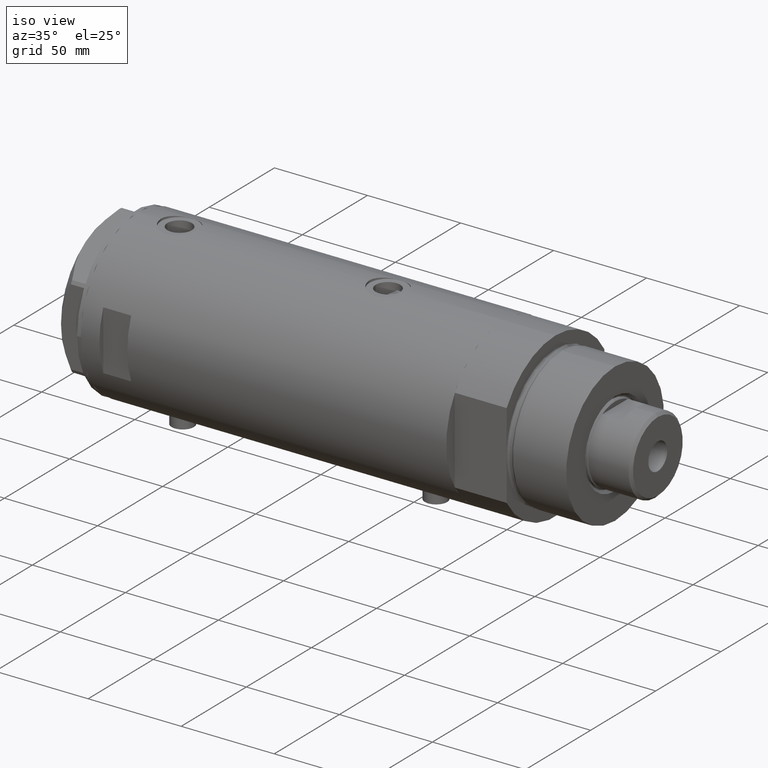
[diagram: clean part render]
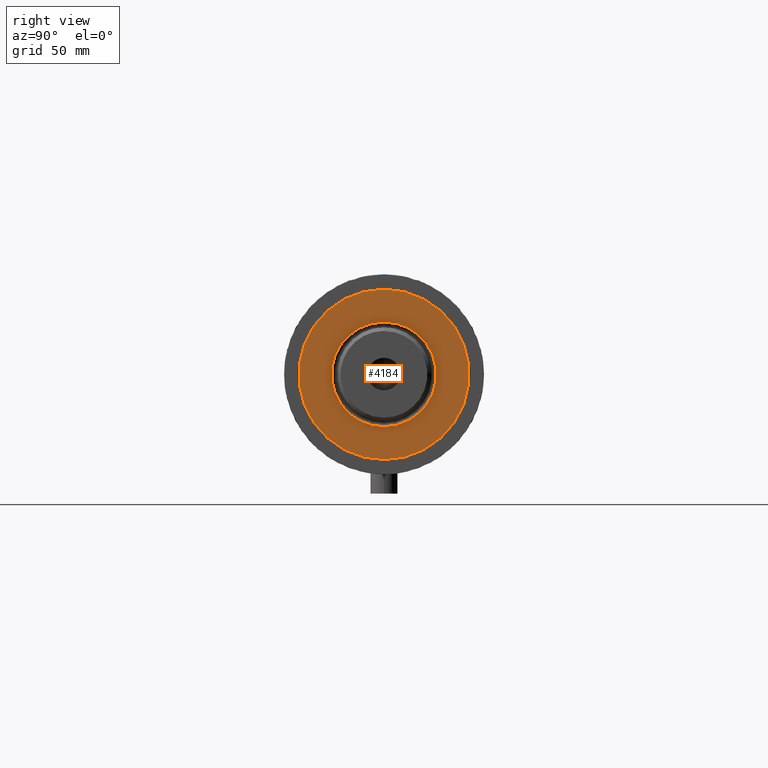
[diagram: tour spotlight — one face highlighted and labeled with its STEP entity id]
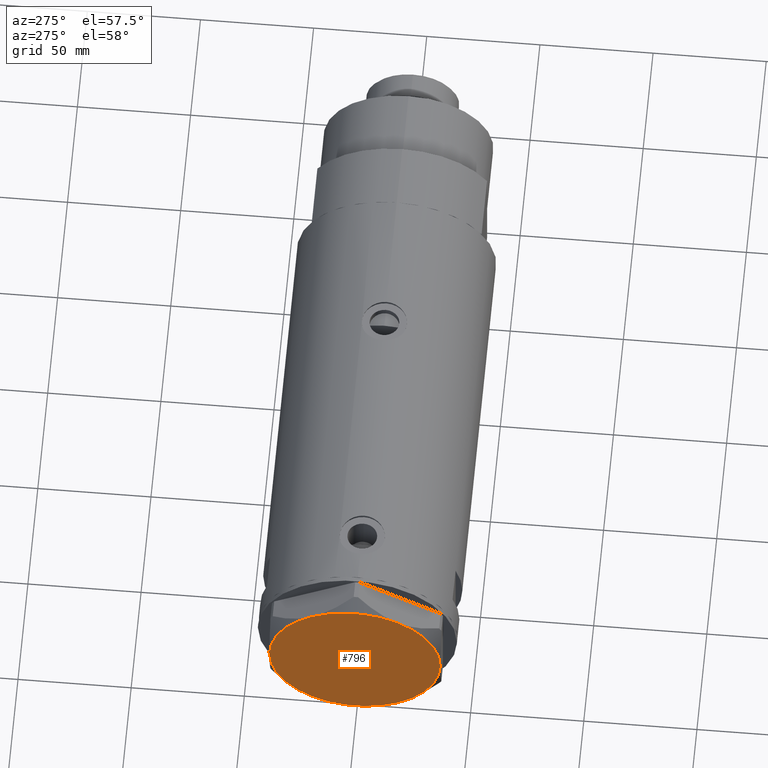
[diagram: tour spotlight — one face highlighted and labeled with its STEP entity id]
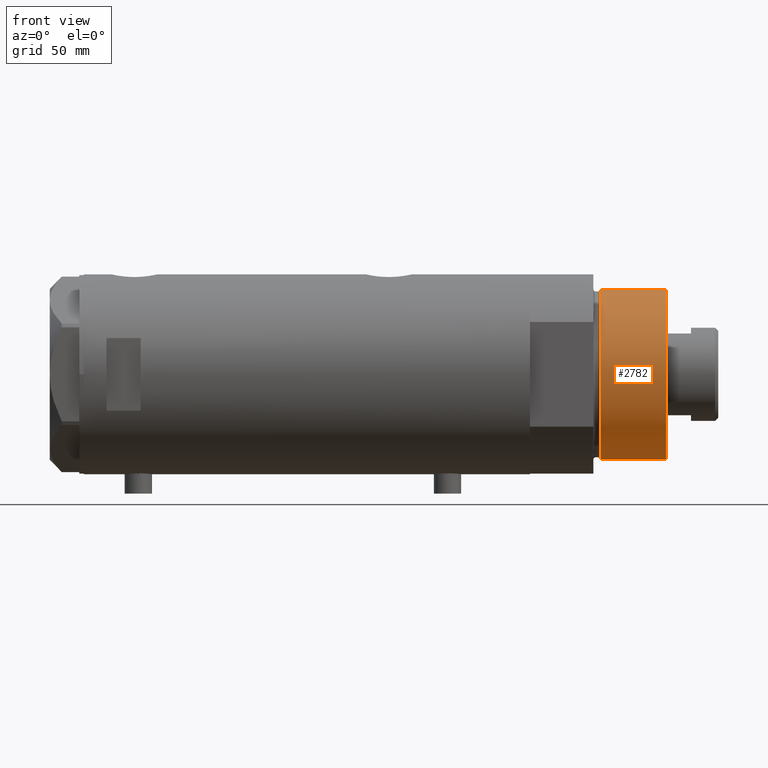
[diagram: tour spotlight — one face highlighted and labeled with its STEP entity id]
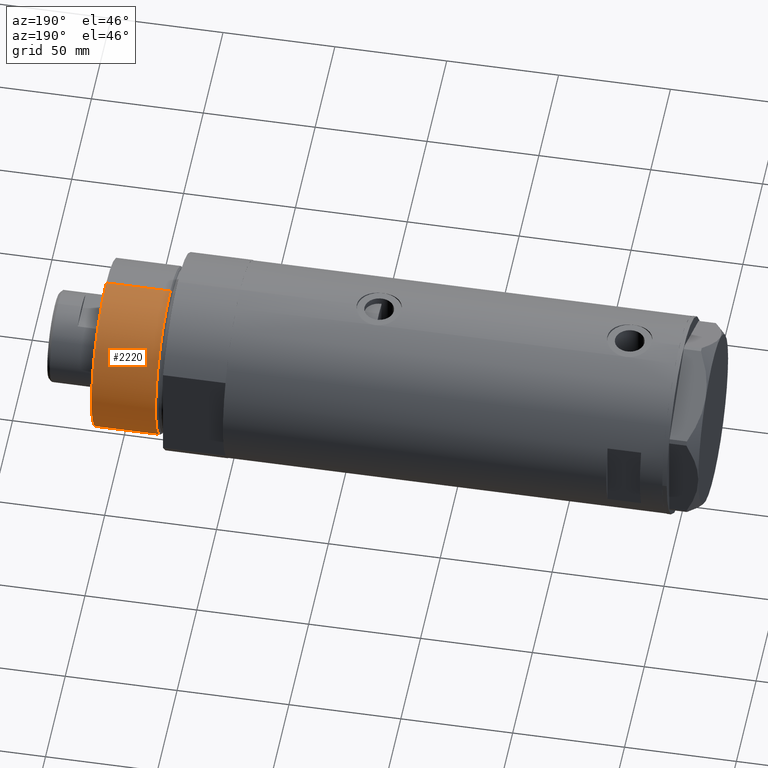
[diagram: tour spotlight — one face highlighted and labeled with its STEP entity id]
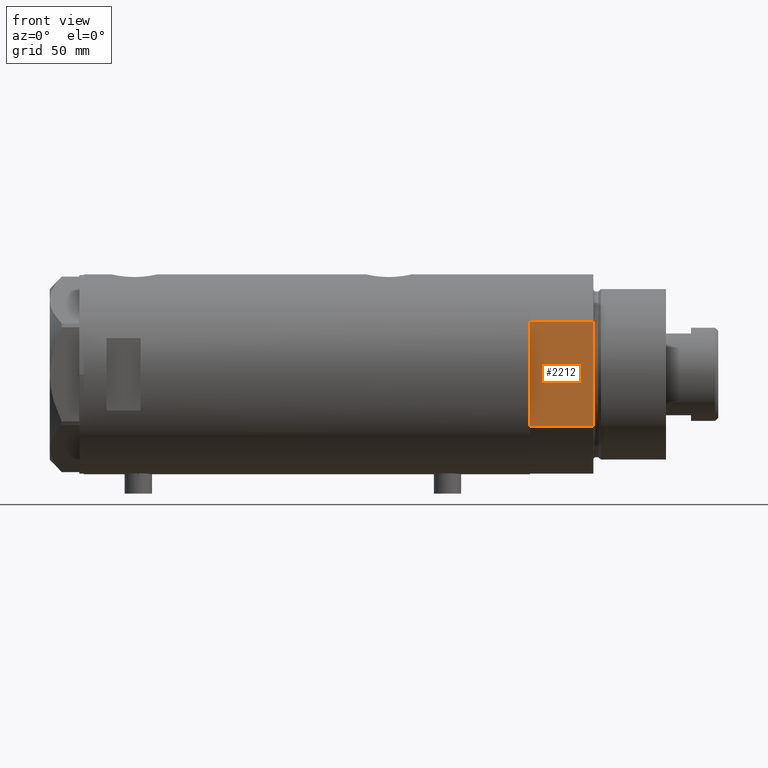
[diagram: tour spotlight — one face highlighted and labeled with its STEP entity id]
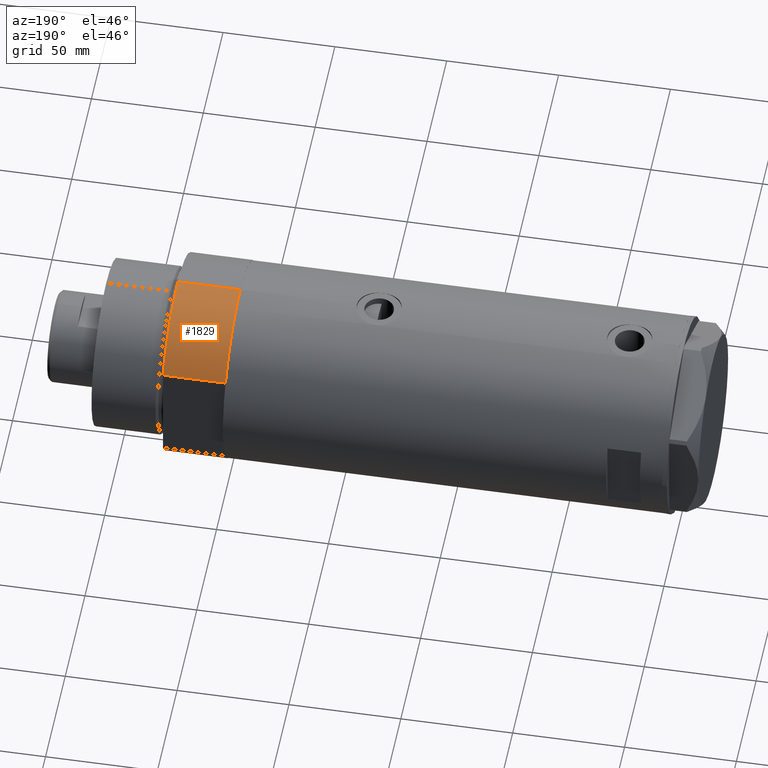
[diagram: tour spotlight — one face highlighted and labeled with its STEP entity id]
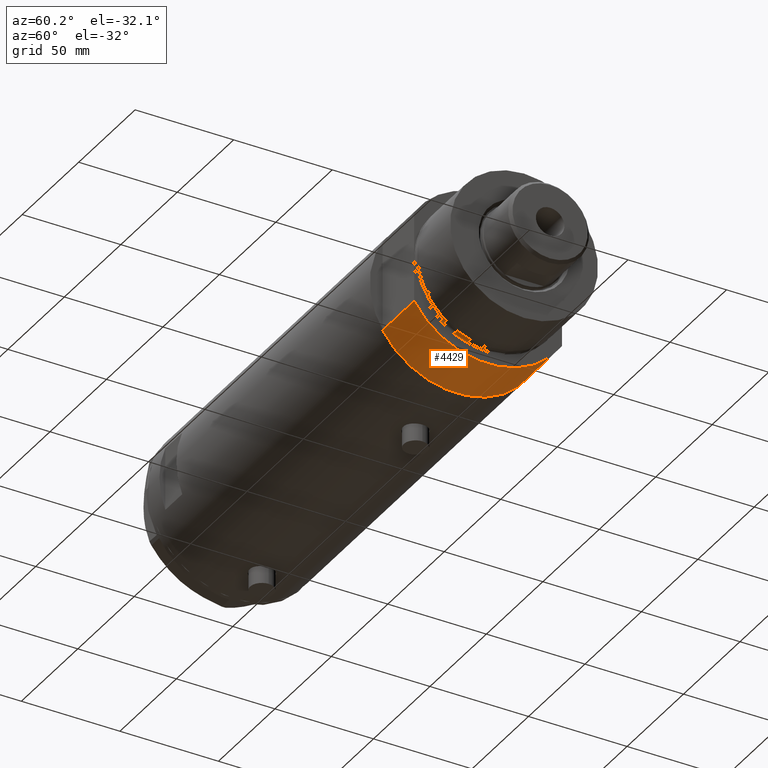
[diagram: tour spotlight — one face highlighted and labeled with its STEP entity id]
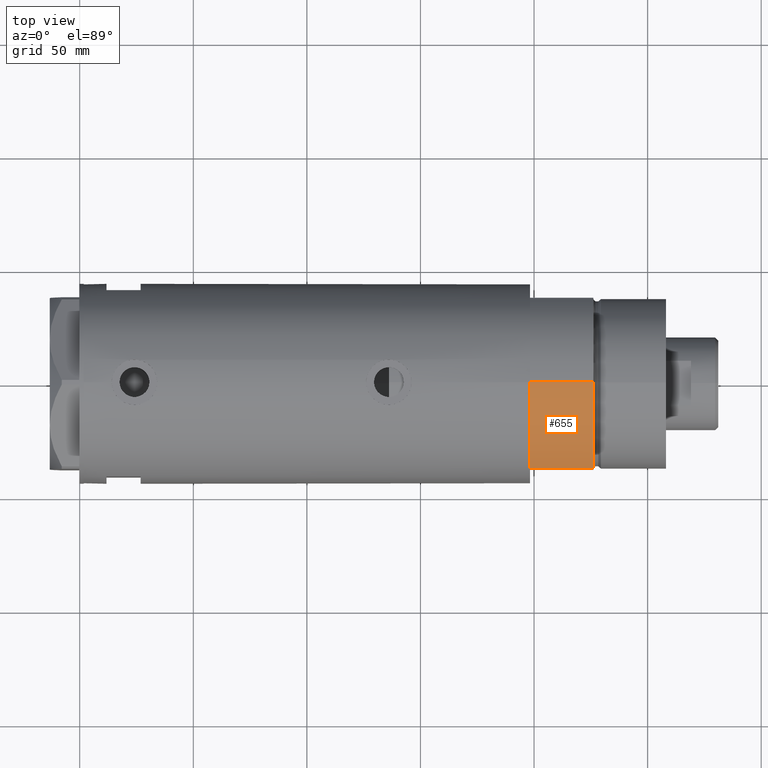
[diagram: tour spotlight — one face highlighted and labeled with its STEP entity id]
A machine part: a face-by-face anatomy tour. The part has 121 B-rep faces; the first image is the clean iso view, then the 8 largest visible faces are spotlighted one at a time (largest first), each with its STEP entity span.

Face 1 — right view, entity #4184. In plain terms, the highlighted planar face has unit normal (1, 0, -0).
Definition (entity closure, byte-faithful):
#47 = FACE_OUTER_BOUND ( 'NONE', #1843, .T. ) ;
#205 = DIRECTION ( 'NONE',  ( 1.000000000000000000, 0.000000000000000000, 0.000000000000000000 ) ) ;
#224 = VERTEX_POINT ( 'NONE', #3590 ) ;
#432 = AXIS2_PLACEMENT_3D ( 'NONE', #3646, #1155, #2163 ) ;
#442 = CARTESIAN_POINT ( 'NONE',  ( 23.05000000000002913, 0.000000000000000000, 59.89999999999999147 ) ) ;
#467 = DIRECTION ( 'NONE',  ( 0.000000000000000000, 0.000000000000000000, 1.000000000000000000 ) ) ;
#571 = DIRECTION ( 'NONE',  ( -0.000000000000000000, -0.000000000000000000, -1.000000000000000000 ) ) ;
#617 = CARTESIAN_POINT ( 'NONE',  ( 37.50000000000000711, 4.592425496802575156E-15, 59.89999999999999147 ) ) ;
#681 = DIRECTION ( 'NONE',  ( 0.000000000000000000, 0.000000000000000000, 1.000000000000000000 ) ) ;
#784 = AXIS2_PLACEMENT_3D ( 'NONE', #3971, #1967, #205 ) ;
#801 = VERTEX_POINT ( 'NONE', #442 ) ;
#964 = EDGE_CURVE ( 'NONE', #801, #224, #2338, .T. ) ;
#1007 = CIRCLE ( 'NONE', #784, 23.05000000000002913 ) ;
#1141 = ORIENTED_EDGE ( 'NONE', *, *, #964, .T. ) ;
#1155 = DIRECTION ( 'NONE',  ( 0.000000000000000000, 0.000000000000000000, 1.000000000000000000 ) ) ;
#1342 = EDGE_CURVE ( 'NONE', #224, #801, #1007, .T. ) ;
#1354 = CARTESIAN_POINT ( 'NONE',  ( 0.000000000000000000, 0.000000000000000000, 59.89999999999999147 ) ) ;
#1675 = CIRCLE ( 'NONE', #1740, 37.50000000000000711 ) ;
#1740 = AXIS2_PLACEMENT_3D ( 'NONE', #1354, #681, #2087 ) ;
#1843 = EDGE_LOOP ( 'NONE', ( #3481, #3930 ) ) ;
#1891 = CIRCLE ( 'NONE', #3084, 37.50000000000000711 ) ;
#1967 = DIRECTION ( 'NONE',  ( -0.000000000000000000, -0.000000000000000000, -1.000000000000000000 ) ) ;
#1990 = DIRECTION ( 'NONE',  ( 1.000000000000000000, 0.000000000000000000, 0.000000000000000000 ) ) ;
#2011 = CARTESIAN_POINT ( 'NONE',  ( 0.000000000000000000, 0.000000000000000000, 59.89999999999999147 ) ) ;
#2087 = DIRECTION ( 'NONE',  ( 1.000000000000000000, 0.000000000000000000, 0.000000000000000000 ) ) ;
#2163 = DIRECTION ( 'NONE',  ( 1.000000000000000000, 0.000000000000000000, -0.000000000000000000 ) ) ;
#2292 = EDGE_CURVE ( 'NONE', #2482, #3853, #1675, .T. ) ;
#2338 = CIRCLE ( 'NONE', #3506, 23.05000000000002913 ) ;
#2379 = CARTESIAN_POINT ( 'NONE',  ( -37.50000000000000711, 0.000000000000000000, 59.89999999999999147 ) ) ;
#2482 = VERTEX_POINT ( 'NONE', #617 ) ;
#2545 = CARTESIAN_POINT ( 'NONE',  ( 0.000000000000000000, 0.000000000000000000, 59.89999999999999147 ) ) ;
#2702 = EDGE_CURVE ( 'NONE', #3853, #2482, #1891, .T. ) ;
#2955 = ORIENTED_EDGE ( 'NONE', *, *, #1342, .T. ) ;
#3084 = AXIS2_PLACEMENT_3D ( 'NONE', #2545, #467, #4279 ) ;
#3396 = EDGE_LOOP ( 'NONE', ( #1141, #2955 ) ) ;
#3481 = ORIENTED_EDGE ( 'NONE', *, *, #2702, .T. ) ;
#3506 = AXIS2_PLACEMENT_3D ( 'NONE', #2011, #571, #1990 ) ;
#3590 = CARTESIAN_POINT ( 'NONE',  ( -23.05000000000002913, 2.822810872034651791E-15, 59.89999999999999147 ) ) ;
#3646 = CARTESIAN_POINT ( 'NONE',  ( 0.000000000000000000, 0.000000000000000000, 59.89999999999999147 ) ) ;
#3853 = VERTEX_POINT ( 'NONE', #2379 ) ;
#3930 = ORIENTED_EDGE ( 'NONE', *, *, #2292, .T. ) ;
#3971 = CARTESIAN_POINT ( 'NONE',  ( 0.000000000000000000, 0.000000000000000000, 59.89999999999999147 ) ) ;
#3994 = PLANE ( 'NONE',  #432 ) ;
#4184 = ADVANCED_FACE ( 'NONE', ( #4275, #47 ), #3994, .T. ) ;
#4275 = FACE_BOUND ( 'NONE', #3396, .T. ) ;
#4279 = DIRECTION ( 'NONE',  ( 1.000000000000000000, 0.000000000000000000, 0.000000000000000000 ) ) ;

Face 2 — auxiliary view, entity #796. In plain terms, the highlighted planar face has unit normal (-1, -0, 0).
Definition (entity closure, byte-faithful):
#1 = ORIENTED_EDGE ( 'NONE', *, *, #3085, .T. ) ;
#119 = AXIS2_PLACEMENT_3D ( 'NONE', #3650, #2308, #3692 ) ;
#170 = DIRECTION ( 'NONE',  ( 1.000000000000000000, 0.000000000000000000, -0.000000000000000000 ) ) ;
#247 = CARTESIAN_POINT ( 'NONE',  ( -18.87499999999999645, -32.69245899286255508, 13.00000000000000000 ) ) ;
#381 = VERTEX_POINT ( 'NONE', #3255 ) ;
#462 = ORIENTED_EDGE ( 'NONE', *, *, #2385, .T. ) ;
#475 = CARTESIAN_POINT ( 'NONE',  ( -37.75000000000000000, -1.201851678989727067E-14, 13.00000000000000000 ) ) ;
#484 = AXIS2_PLACEMENT_3D ( 'NONE', #4493, #2157, #3872 ) ;
#518 = VERTEX_POINT ( 'NONE', #247 ) ;
#520 = DIRECTION ( 'NONE',  ( 0.000000000000000000, 0.000000000000000000, 1.000000000000000000 ) ) ;
#679 = EDGE_CURVE ( 'NONE', #814, #381, #2259, .T. ) ;
#720 = DIRECTION ( 'NONE',  ( 1.000000000000000000, 0.000000000000000000, 0.000000000000000000 ) ) ;
#756 = ORIENTED_EDGE ( 'NONE', *, *, #679, .T. ) ;
#796 = ADVANCED_FACE ( 'NONE', ( #851 ), #1909, .T. ) ;
#814 = VERTEX_POINT ( 'NONE', #1845 ) ;
#851 = FACE_OUTER_BOUND ( 'NONE', #2105, .T. ) ;
#1016 = AXIS2_PLACEMENT_3D ( 'NONE', #2862, #1471, #4273 ) ;
#1049 = DIRECTION ( 'NONE',  ( 0.000000000000000000, 0.000000000000000000, 1.000000000000000000 ) ) ;
#1099 = CIRCLE ( 'NONE', #1016, 37.75000000000000000 ) ;
#1175 = AXIS2_PLACEMENT_3D ( 'NONE', #1706, #1049, #720 ) ;
#1233 = CARTESIAN_POINT ( 'NONE',  ( 0.000000000000000000, 0.000000000000000000, 13.00000000000000000 ) ) ;
#1256 = ORIENTED_EDGE ( 'NONE', *, *, #3200, .T. ) ;
#1263 = DIRECTION ( 'NONE',  ( 1.000000000000000000, 0.000000000000000000, 0.000000000000000000 ) ) ;
#1384 = CIRCLE ( 'NONE', #1175, 37.75000000000000000 ) ;
#1393 = CARTESIAN_POINT ( 'NONE',  ( 0.000000000000000000, 0.000000000000000000, 13.00000000000000000 ) ) ;
#1435 = DIRECTION ( 'NONE',  ( 0.000000000000000000, 0.000000000000000000, 1.000000000000000000 ) ) ;
#1471 = DIRECTION ( 'NONE',  ( 0.000000000000000000, 0.000000000000000000, 1.000000000000000000 ) ) ;
#1621 = EDGE_CURVE ( 'NONE', #3400, #518, #3228, .T. ) ;
#1706 = CARTESIAN_POINT ( 'NONE',  ( 0.000000000000000000, 0.000000000000000000, 13.00000000000000000 ) ) ;
#1845 = CARTESIAN_POINT ( 'NONE',  ( 18.87499999999998579, -32.69245899286256218, 13.00000000000000000 ) ) ;
#1909 = PLANE ( 'NONE',  #2560 ) ;
#1936 = VERTEX_POINT ( 'NONE', #3344 ) ;
#2010 = CARTESIAN_POINT ( 'NONE',  ( 18.87500000000000000, 32.69245899286255508, 13.00000000000000000 ) ) ;
#2082 = ORIENTED_EDGE ( 'NONE', *, *, #1621, .T. ) ;
#2105 = EDGE_LOOP ( 'NONE', ( #756, #1, #3402, #462, #2082, #1256 ) ) ;
#2157 = DIRECTION ( 'NONE',  ( 0.000000000000000000, 0.000000000000000000, 1.000000000000000000 ) ) ;
#2259 = CIRCLE ( 'NONE', #3293, 37.75000000000000000 ) ;
#2308 = DIRECTION ( 'NONE',  ( 0.000000000000000000, 0.000000000000000000, 1.000000000000000000 ) ) ;
#2385 = EDGE_CURVE ( 'NONE', #1936, #3400, #2653, .T. ) ;
#2560 = AXIS2_PLACEMENT_3D ( 'NONE', #1233, #520, #170 ) ;
#2653 = CIRCLE ( 'NONE', #4447, 37.75000000000000000 ) ;
#2862 = CARTESIAN_POINT ( 'NONE',  ( 0.000000000000000000, 0.000000000000000000, 13.00000000000000000 ) ) ;
#2899 = EDGE_CURVE ( 'NONE', #3485, #1936, #4231, .T. ) ;
#3085 = EDGE_CURVE ( 'NONE', #381, #3485, #1099, .T. ) ;
#3195 = DIRECTION ( 'NONE',  ( 1.000000000000000000, 0.000000000000000000, 0.000000000000000000 ) ) ;
#3200 = EDGE_CURVE ( 'NONE', #518, #814, #1384, .T. ) ;
#3228 = CIRCLE ( 'NONE', #484, 37.75000000000000000 ) ;
#3255 = CARTESIAN_POINT ( 'NONE',  ( 37.75000000000000711, 1.802777518484591547E-14, 13.00000000000000000 ) ) ;
#3293 = AXIS2_PLACEMENT_3D ( 'NONE', #1393, #1435, #3195 ) ;
#3344 = CARTESIAN_POINT ( 'NONE',  ( -18.87499999999999645, 32.69245899286256218, 13.00000000000000000 ) ) ;
#3400 = VERTEX_POINT ( 'NONE', #475 ) ;
#3402 = ORIENTED_EDGE ( 'NONE', *, *, #2899, .T. ) ;
#3438 = DIRECTION ( 'NONE',  ( 0.000000000000000000, 0.000000000000000000, 1.000000000000000000 ) ) ;
#3485 = VERTEX_POINT ( 'NONE', #2010 ) ;
#3650 = CARTESIAN_POINT ( 'NONE',  ( 0.000000000000000000, 0.000000000000000000, 13.00000000000000000 ) ) ;
#3692 = DIRECTION ( 'NONE',  ( 1.000000000000000000, 0.000000000000000000, 0.000000000000000000 ) ) ;
#3872 = DIRECTION ( 'NONE',  ( 1.000000000000000000, 0.000000000000000000, 0.000000000000000000 ) ) ;
#4231 = CIRCLE ( 'NONE', #119, 37.75000000000000000 ) ;
#4273 = DIRECTION ( 'NONE',  ( 1.000000000000000000, 0.000000000000000000, 0.000000000000000000 ) ) ;
#4383 = CARTESIAN_POINT ( 'NONE',  ( 0.000000000000000000, 0.000000000000000000, 13.00000000000000000 ) ) ;
#4447 = AXIS2_PLACEMENT_3D ( 'NONE', #4383, #3438, #1263 ) ;
#4493 = CARTESIAN_POINT ( 'NONE',  ( 0.000000000000000000, 0.000000000000000000, 13.00000000000000000 ) ) ;

Face 3 — front view, entity #2782. In plain terms, the highlighted cylindrical surface (partial cylindrical patch) has radius 37.5 mm, axis along (-1, -0, 0).
Definition (entity closure, byte-faithful):
#163 = DIRECTION ( 'NONE',  ( -0.000000000000000000, -0.000000000000000000, -1.000000000000000000 ) ) ;
#431 = FACE_OUTER_BOUND ( 'NONE', #1904, .T. ) ;
#467 = DIRECTION ( 'NONE',  ( 0.000000000000000000, 0.000000000000000000, 1.000000000000000000 ) ) ;
#562 = CIRCLE ( 'NONE', #2350, 37.50000000000000711 ) ;
#588 = LINE ( 'NONE', #4016, #863 ) ;
#617 = CARTESIAN_POINT ( 'NONE',  ( 37.50000000000000711, 4.592425496802575156E-15, 59.89999999999999147 ) ) ;
#650 = ORIENTED_EDGE ( 'NONE', *, *, #2702, .F. ) ;
#668 = DIRECTION ( 'NONE',  ( -0.000000000000000000, -0.000000000000000000, -1.000000000000000000 ) ) ;
#806 = DIRECTION ( 'NONE',  ( -0.000000000000000000, -0.000000000000000000, -1.000000000000000000 ) ) ;
#863 = VECTOR ( 'NONE', #163, 1000.000000000000000 ) ;
#900 = DIRECTION ( 'NONE',  ( -0.000000000000000000, -0.000000000000000000, 1.000000000000000000 ) ) ;
#1248 = DIRECTION ( 'NONE',  ( -1.000000000000000000, 0.000000000000000000, 0.000000000000000000 ) ) ;
#1383 = LINE ( 'NONE', #2742, #2800 ) ;
#1791 = ORIENTED_EDGE ( 'NONE', *, *, #2407, .T. ) ;
#1833 = CYLINDRICAL_SURFACE ( 'NONE', #4025, 37.50000000000000711 ) ;
#1891 = CIRCLE ( 'NONE', #3084, 37.50000000000000711 ) ;
#1904 = EDGE_LOOP ( 'NONE', ( #2421, #650, #2435, #1791 ) ) ;
#2297 = DIRECTION ( 'NONE',  ( 1.000000000000000000, 0.000000000000000000, 0.000000000000000000 ) ) ;
#2350 = AXIS2_PLACEMENT_3D ( 'NONE', #4353, #900, #2297 ) ;
#2379 = CARTESIAN_POINT ( 'NONE',  ( -37.50000000000000711, 0.000000000000000000, 59.89999999999999147 ) ) ;
#2407 = EDGE_CURVE ( 'NONE', #3658, #3333, #562, .T. ) ;
#2421 = ORIENTED_EDGE ( 'NONE', *, *, #2837, .F. ) ;
#2435 = ORIENTED_EDGE ( 'NONE', *, *, #3660, .T. ) ;
#2482 = VERTEX_POINT ( 'NONE', #617 ) ;
#2511 = CARTESIAN_POINT ( 'NONE',  ( 37.50000000000000711, 4.592425496802575156E-15, 31.27384048104054415 ) ) ;
#2545 = CARTESIAN_POINT ( 'NONE',  ( 0.000000000000000000, 0.000000000000000000, 59.89999999999999147 ) ) ;
#2702 = EDGE_CURVE ( 'NONE', #3853, #2482, #1891, .T. ) ;
#2742 = CARTESIAN_POINT ( 'NONE',  ( -37.50000000000000711, 0.000000000000000000, 59.89999999999999147 ) ) ;
#2782 = ADVANCED_FACE ( 'NONE', ( #431 ), #1833, .T. ) ;
#2800 = VECTOR ( 'NONE', #668, 1000.000000000000000 ) ;
#2837 = EDGE_CURVE ( 'NONE', #2482, #3333, #588, .T. ) ;
#3084 = AXIS2_PLACEMENT_3D ( 'NONE', #2545, #467, #4279 ) ;
#3138 = CARTESIAN_POINT ( 'NONE',  ( -37.50000000000000711, 0.000000000000000000, 31.27384048104054415 ) ) ;
#3333 = VERTEX_POINT ( 'NONE', #2511 ) ;
#3658 = VERTEX_POINT ( 'NONE', #3138 ) ;
#3660 = EDGE_CURVE ( 'NONE', #3853, #3658, #1383, .T. ) ;
#3853 = VERTEX_POINT ( 'NONE', #2379 ) ;
#3952 = CARTESIAN_POINT ( 'NONE',  ( 0.000000000000000000, 0.000000000000000000, 59.89999999999999147 ) ) ;
#4016 = CARTESIAN_POINT ( 'NONE',  ( 37.50000000000000711, 4.592425496802575156E-15, 59.89999999999999147 ) ) ;
#4025 = AXIS2_PLACEMENT_3D ( 'NONE', #3952, #806, #1248 ) ;
#4279 = DIRECTION ( 'NONE',  ( 1.000000000000000000, 0.000000000000000000, 0.000000000000000000 ) ) ;
#4353 = CARTESIAN_POINT ( 'NONE',  ( 0.000000000000000000, 0.000000000000000000, 31.27384048104054415 ) ) ;

Face 4 — auxiliary view, entity #2220. In plain terms, the highlighted cylindrical surface (partial cylindrical patch) has radius 37.5 mm, axis along (-1, -0, 0).
Definition (entity closure, byte-faithful):
#43 = AXIS2_PLACEMENT_3D ( 'NONE', #3649, #2999, #3386 ) ;
#106 = ORIENTED_EDGE ( 'NONE', *, *, #3660, .F. ) ;
#163 = DIRECTION ( 'NONE',  ( -0.000000000000000000, -0.000000000000000000, -1.000000000000000000 ) ) ;
#588 = LINE ( 'NONE', #4016, #863 ) ;
#617 = CARTESIAN_POINT ( 'NONE',  ( 37.50000000000000711, 4.592425496802575156E-15, 59.89999999999999147 ) ) ;
#668 = DIRECTION ( 'NONE',  ( -0.000000000000000000, -0.000000000000000000, -1.000000000000000000 ) ) ;
#681 = DIRECTION ( 'NONE',  ( 0.000000000000000000, 0.000000000000000000, 1.000000000000000000 ) ) ;
#863 = VECTOR ( 'NONE', #163, 1000.000000000000000 ) ;
#1158 = CARTESIAN_POINT ( 'NONE',  ( 0.000000000000000000, 0.000000000000000000, 31.27384048104054415 ) ) ;
#1354 = CARTESIAN_POINT ( 'NONE',  ( 0.000000000000000000, 0.000000000000000000, 59.89999999999999147 ) ) ;
#1383 = LINE ( 'NONE', #2742, #2800 ) ;
#1519 = DIRECTION ( 'NONE',  ( -0.000000000000000000, -0.000000000000000000, 1.000000000000000000 ) ) ;
#1601 = AXIS2_PLACEMENT_3D ( 'NONE', #1158, #1519, #2143 ) ;
#1675 = CIRCLE ( 'NONE', #1740, 37.50000000000000711 ) ;
#1740 = AXIS2_PLACEMENT_3D ( 'NONE', #1354, #681, #2087 ) ;
#1807 = CIRCLE ( 'NONE', #1601, 37.50000000000000711 ) ;
#2087 = DIRECTION ( 'NONE',  ( 1.000000000000000000, 0.000000000000000000, 0.000000000000000000 ) ) ;
#2116 = EDGE_CURVE ( 'NONE', #3333, #3658, #1807, .T. ) ;
#2143 = DIRECTION ( 'NONE',  ( 1.000000000000000000, 0.000000000000000000, 0.000000000000000000 ) ) ;
#2220 = ADVANCED_FACE ( 'NONE', ( #3690 ), #2256, .T. ) ;
#2256 = CYLINDRICAL_SURFACE ( 'NONE', #43, 37.50000000000000711 ) ;
#2292 = EDGE_CURVE ( 'NONE', #2482, #3853, #1675, .T. ) ;
#2379 = CARTESIAN_POINT ( 'NONE',  ( -37.50000000000000711, 0.000000000000000000, 59.89999999999999147 ) ) ;
#2482 = VERTEX_POINT ( 'NONE', #617 ) ;
#2489 = EDGE_LOOP ( 'NONE', ( #3545, #3032, #2620, #106 ) ) ;
#2511 = CARTESIAN_POINT ( 'NONE',  ( 37.50000000000000711, 4.592425496802575156E-15, 31.27384048104054415 ) ) ;
#2620 = ORIENTED_EDGE ( 'NONE', *, *, #2116, .T. ) ;
#2742 = CARTESIAN_POINT ( 'NONE',  ( -37.50000000000000711, 0.000000000000000000, 59.89999999999999147 ) ) ;
#2800 = VECTOR ( 'NONE', #668, 1000.000000000000000 ) ;
#2837 = EDGE_CURVE ( 'NONE', #2482, #3333, #588, .T. ) ;
#2999 = DIRECTION ( 'NONE',  ( -0.000000000000000000, -0.000000000000000000, -1.000000000000000000 ) ) ;
#3032 = ORIENTED_EDGE ( 'NONE', *, *, #2837, .T. ) ;
#3138 = CARTESIAN_POINT ( 'NONE',  ( -37.50000000000000711, 0.000000000000000000, 31.27384048104054415 ) ) ;
#3333 = VERTEX_POINT ( 'NONE', #2511 ) ;
#3386 = DIRECTION ( 'NONE',  ( -1.000000000000000000, 0.000000000000000000, 0.000000000000000000 ) ) ;
#3545 = ORIENTED_EDGE ( 'NONE', *, *, #2292, .F. ) ;
#3649 = CARTESIAN_POINT ( 'NONE',  ( 0.000000000000000000, 0.000000000000000000, 59.89999999999999147 ) ) ;
#3658 = VERTEX_POINT ( 'NONE', #3138 ) ;
#3660 = EDGE_CURVE ( 'NONE', #3853, #3658, #1383, .T. ) ;
#3690 = FACE_OUTER_BOUND ( 'NONE', #2489, .T. ) ;
#3853 = VERTEX_POINT ( 'NONE', #2379 ) ;
#4016 = CARTESIAN_POINT ( 'NONE',  ( 37.50000000000000711, 4.592425496802575156E-15, 59.89999999999999147 ) ) ;

Face 5 — front view, entity #2212. In plain terms, the highlighted planar face has unit normal (-0, 1, 0).
Definition (entity closure, byte-faithful):
#116 = DIRECTION ( 'NONE',  ( -1.000000000000000000, -0.000000000000000000, -0.000000000000000000 ) ) ;
#130 = CARTESIAN_POINT ( 'NONE',  ( 23.01629857296780557, -37.50000000000000000, 0.000000000000000000 ) ) ;
#137 = ORIENTED_EDGE ( 'NONE', *, *, #1253, .F. ) ;
#210 = PLANE ( 'NONE',  #4299 ) ;
#235 = DIRECTION ( 'NONE',  ( -1.000000000000000000, -0.000000000000000000, -0.000000000000000000 ) ) ;
#361 = EDGE_CURVE ( 'NONE', #990, #2810, #1562, .T. ) ;
#366 = EDGE_CURVE ( 'NONE', #4136, #4197, #3975, .T. ) ;
#441 = DIRECTION ( 'NONE',  ( -1.000000000000000000, -0.000000000000000000, -0.000000000000000000 ) ) ;
#509 = CARTESIAN_POINT ( 'NONE',  ( -23.01629857296780557, -37.50000000000000000, 27.89999999999999858 ) ) ;
#511 = FACE_OUTER_BOUND ( 'NONE', #2217, .T. ) ;
#632 = VECTOR ( 'NONE', #1781, 1000.000000000000000 ) ;
#697 = ORIENTED_EDGE ( 'NONE', *, *, #1442, .T. ) ;
#724 = VECTOR ( 'NONE', #441, 1000.000000000000000 ) ;
#738 = VERTEX_POINT ( 'NONE', #2971 ) ;
#764 = CARTESIAN_POINT ( 'NONE',  ( -23.01629857296780557, -37.50000000000000000, 0.000000000000000000 ) ) ;
#839 = CARTESIAN_POINT ( 'NONE',  ( -23.01629857296780557, -37.50000000000000000, 27.89999999999999858 ) ) ;
#862 = LINE ( 'NONE', #839, #2947 ) ;
#880 = CARTESIAN_POINT ( 'NONE',  ( 23.01629857296780557, -37.50000000000000000, 27.89999999999999858 ) ) ;
#990 = VERTEX_POINT ( 'NONE', #3139 ) ;
#1235 = LINE ( 'NONE', #130, #2564 ) ;
#1253 = EDGE_CURVE ( 'NONE', #3160, #738, #1850, .T. ) ;
#1272 = CARTESIAN_POINT ( 'NONE',  ( -23.01629857296780557, -37.50000000000000000, 27.89999999999999858 ) ) ;
#1274 = DIRECTION ( 'NONE',  ( -0.000000000000000000, 1.000000000000000000, 0.000000000000000000 ) ) ;
#1442 = EDGE_CURVE ( 'NONE', #990, #2348, #1235, .T. ) ;
#1452 = VECTOR ( 'NONE', #3041, 1000.000000000000000 ) ;
#1490 = LINE ( 'NONE', #764, #724 ) ;
#1539 = EDGE_CURVE ( 'NONE', #738, #4197, #3685, .T. ) ;
#1562 = LINE ( 'NONE', #2543, #1663 ) ;
#1663 = VECTOR ( 'NONE', #116, 1000.000000000000000 ) ;
#1781 = DIRECTION ( 'NONE',  ( -1.000000000000000000, -0.000000000000000000, -0.000000000000000000 ) ) ;
#1850 = LINE ( 'NONE', #2136, #632 ) ;
#2041 = ORIENTED_EDGE ( 'NONE', *, *, #1539, .F. ) ;
#2136 = CARTESIAN_POINT ( 'NONE',  ( -23.01629857296780557, -37.50000000000000000, 0.000000000000000000 ) ) ;
#2212 = ADVANCED_FACE ( 'NONE', ( #511 ), #210, .F. ) ;
#2217 = EDGE_LOOP ( 'NONE', ( #2272, #4311, #2041, #137, #3819, #3137, #697 ) ) ;
#2272 = ORIENTED_EDGE ( 'NONE', *, *, #2812, .T. ) ;
#2334 = VECTOR ( 'NONE', #3586, 1000.000000000000000 ) ;
#2348 = VERTEX_POINT ( 'NONE', #880 ) ;
#2543 = CARTESIAN_POINT ( 'NONE',  ( -23.01629857296780557, -37.50000000000000000, 0.000000000000000000 ) ) ;
#2564 = VECTOR ( 'NONE', #4333, 1000.000000000000000 ) ;
#2810 = VERTEX_POINT ( 'NONE', #4399 ) ;
#2812 = EDGE_CURVE ( 'NONE', #2348, #4136, #862, .T. ) ;
#2947 = VECTOR ( 'NONE', #235, 1000.000000000000000 ) ;
#2965 = CARTESIAN_POINT ( 'NONE',  ( -23.01629857296780557, -37.50000000000000000, 0.000000000000000000 ) ) ;
#2971 = CARTESIAN_POINT ( 'NONE',  ( -23.01629857296780557, -37.50000000000000000, 0.000000000000000000 ) ) ;
#3041 = DIRECTION ( 'NONE',  ( -0.000000000000000000, -0.000000000000000000, 1.000000000000000000 ) ) ;
#3137 = ORIENTED_EDGE ( 'NONE', *, *, #361, .F. ) ;
#3139 = CARTESIAN_POINT ( 'NONE',  ( 23.01629857296780557, -37.50000000000000000, 0.000000000000000000 ) ) ;
#3160 = VERTEX_POINT ( 'NONE', #3508 ) ;
#3395 = EDGE_CURVE ( 'NONE', #2810, #3160, #1490, .T. ) ;
#3508 = CARTESIAN_POINT ( 'NONE',  ( -13.91941090707505957, -37.50000000000000000, 0.000000000000000000 ) ) ;
#3560 = CARTESIAN_POINT ( 'NONE',  ( 0.000000000000000000, -37.50000000000000000, 27.89999999999999858 ) ) ;
#3586 = DIRECTION ( 'NONE',  ( -1.000000000000000000, -0.000000000000000000, -0.000000000000000000 ) ) ;
#3627 = DIRECTION ( 'NONE',  ( 0.000000000000000000, -0.000000000000000000, 1.000000000000000000 ) ) ;
#3685 = LINE ( 'NONE', #3762, #1452 ) ;
#3762 = CARTESIAN_POINT ( 'NONE',  ( -23.01629857296780557, -37.50000000000000000, 0.000000000000000000 ) ) ;
#3819 = ORIENTED_EDGE ( 'NONE', *, *, #3395, .F. ) ;
#3975 = LINE ( 'NONE', #509, #2334 ) ;
#4136 = VERTEX_POINT ( 'NONE', #3560 ) ;
#4197 = VERTEX_POINT ( 'NONE', #1272 ) ;
#4299 = AXIS2_PLACEMENT_3D ( 'NONE', #2965, #1274, #3627 ) ;
#4311 = ORIENTED_EDGE ( 'NONE', *, *, #366, .T. ) ;
#4333 = DIRECTION ( 'NONE',  ( -0.000000000000000000, -0.000000000000000000, 1.000000000000000000 ) ) ;
#4399 = CARTESIAN_POINT ( 'NONE',  ( 13.91941090707505957, -37.50000000000000000, 0.000000000000000000 ) ) ;

Face 6 — auxiliary view, entity #1829. In plain terms, the highlighted cylindrical surface (partial cylindrical patch) has radius 44 mm, axis along (-1, -0, 0).
Definition (entity closure, byte-faithful):
#176 = CIRCLE ( 'NONE', #778, 44.00000000000000000 ) ;
#269 = CARTESIAN_POINT ( 'NONE',  ( -44.00000000000000000, 0.000000000000000000, 0.000000000000000000 ) ) ;
#452 = EDGE_CURVE ( 'NONE', #4492, #3304, #1854, .T. ) ;
#542 = DIRECTION ( 'NONE',  ( -0.000000000000000000, -0.000000000000000000, -1.000000000000000000 ) ) ;
#598 = LINE ( 'NONE', #3098, #1803 ) ;
#615 = DIRECTION ( 'NONE',  ( 1.000000000000000000, 0.000000000000000000, 0.000000000000000000 ) ) ;
#778 = AXIS2_PLACEMENT_3D ( 'NONE', #1661, #3056, #615 ) ;
#902 = EDGE_CURVE ( 'NONE', #4329, #3277, #598, .T. ) ;
#903 = EDGE_CURVE ( 'NONE', #3304, #4329, #176, .T. ) ;
#934 = AXIS2_PLACEMENT_3D ( 'NONE', #3436, #1768, #2483 ) ;
#1391 = DIRECTION ( 'NONE',  ( 1.000000000000000000, 0.000000000000000000, 0.000000000000000000 ) ) ;
#1440 = VECTOR ( 'NONE', #4300, 1000.000000000000000 ) ;
#1661 = CARTESIAN_POINT ( 'NONE',  ( 0.000000000000000000, 0.000000000000000000, 27.89999999999999858 ) ) ;
#1749 = ORIENTED_EDGE ( 'NONE', *, *, #452, .F. ) ;
#1768 = DIRECTION ( 'NONE',  ( -0.000000000000000000, -0.000000000000000000, -1.000000000000000000 ) ) ;
#1803 = VECTOR ( 'NONE', #542, 1000.000000000000000 ) ;
#1829 = ADVANCED_FACE ( 'NONE', ( #2231 ), #2883, .T. ) ;
#1854 = LINE ( 'NONE', #4340, #1440 ) ;
#1864 = EDGE_LOOP ( 'NONE', ( #4280, #2741, #1749, #2126 ) ) ;
#1897 = CARTESIAN_POINT ( 'NONE',  ( -23.01629857296780557, 37.50000000000000000, 0.000000000000000000 ) ) ;
#2126 = ORIENTED_EDGE ( 'NONE', *, *, #3305, .T. ) ;
#2231 = FACE_OUTER_BOUND ( 'NONE', #1864, .T. ) ;
#2483 = DIRECTION ( 'NONE',  ( -1.000000000000000000, 0.000000000000000000, 0.000000000000000000 ) ) ;
#2741 = ORIENTED_EDGE ( 'NONE', *, *, #903, .F. ) ;
#2883 = CYLINDRICAL_SURFACE ( 'NONE', #934, 44.00000000000000000 ) ;
#3019 = CIRCLE ( 'NONE', #4100, 44.00000000000000000 ) ;
#3056 = DIRECTION ( 'NONE',  ( 0.000000000000000000, 0.000000000000000000, 1.000000000000000000 ) ) ;
#3098 = CARTESIAN_POINT ( 'NONE',  ( -44.00000000000000000, 0.000000000000000000, 27.89999999999999858 ) ) ;
#3277 = VERTEX_POINT ( 'NONE', #269 ) ;
#3304 = VERTEX_POINT ( 'NONE', #3532 ) ;
#3305 = EDGE_CURVE ( 'NONE', #4492, #3277, #3019, .T. ) ;
#3436 = CARTESIAN_POINT ( 'NONE',  ( 0.000000000000000000, 0.000000000000000000, 27.89999999999999858 ) ) ;
#3532 = CARTESIAN_POINT ( 'NONE',  ( -23.01629857296780557, 37.50000000000000000, 27.89999999999999858 ) ) ;
#3846 = DIRECTION ( 'NONE',  ( 0.000000000000000000, 0.000000000000000000, 1.000000000000000000 ) ) ;
#4100 = AXIS2_PLACEMENT_3D ( 'NONE', #4517, #3846, #1391 ) ;
#4280 = ORIENTED_EDGE ( 'NONE', *, *, #902, .F. ) ;
#4300 = DIRECTION ( 'NONE',  ( -0.000000000000000000, -0.000000000000000000, 1.000000000000000000 ) ) ;
#4329 = VERTEX_POINT ( 'NONE', #4400 ) ;
#4340 = CARTESIAN_POINT ( 'NONE',  ( -23.01629857296780557, 37.50000000000000000, 0.000000000000000000 ) ) ;
#4400 = CARTESIAN_POINT ( 'NONE',  ( -44.00000000000000000, 0.000000000000000000, 27.89999999999999858 ) ) ;
#4492 = VERTEX_POINT ( 'NONE', #1897 ) ;
#4517 = CARTESIAN_POINT ( 'NONE',  ( 0.000000000000000000, 0.000000000000000000, 0.000000000000000000 ) ) ;

Face 7 — auxiliary view, entity #4429. In plain terms, the highlighted cylindrical surface (partial cylindrical patch) has radius 44 mm, axis along (-1, -0, 0).
Definition (entity closure, byte-faithful):
#130 = CARTESIAN_POINT ( 'NONE',  ( 23.01629857296780557, -37.50000000000000000, 0.000000000000000000 ) ) ;
#203 = AXIS2_PLACEMENT_3D ( 'NONE', #2139, #2540, #1202 ) ;
#478 = CIRCLE ( 'NONE', #1729, 44.00000000000000000 ) ;
#602 = ORIENTED_EDGE ( 'NONE', *, *, #2086, .T. ) ;
#685 = LINE ( 'NONE', #2093, #1673 ) ;
#849 = ORIENTED_EDGE ( 'NONE', *, *, #933, .F. ) ;
#880 = CARTESIAN_POINT ( 'NONE',  ( 23.01629857296780557, -37.50000000000000000, 27.89999999999999858 ) ) ;
#901 = ORIENTED_EDGE ( 'NONE', *, *, #1442, .F. ) ;
#933 = EDGE_CURVE ( 'NONE', #2348, #4046, #478, .T. ) ;
#990 = VERTEX_POINT ( 'NONE', #3139 ) ;
#996 = EDGE_CURVE ( 'NONE', #990, #1935, #3792, .T. ) ;
#1202 = DIRECTION ( 'NONE',  ( -1.000000000000000000, 0.000000000000000000, 0.000000000000000000 ) ) ;
#1235 = LINE ( 'NONE', #130, #2564 ) ;
#1408 = CARTESIAN_POINT ( 'NONE',  ( 0.000000000000000000, 0.000000000000000000, 0.000000000000000000 ) ) ;
#1442 = EDGE_CURVE ( 'NONE', #990, #2348, #1235, .T. ) ;
#1673 = VECTOR ( 'NONE', #2477, 1000.000000000000000 ) ;
#1729 = AXIS2_PLACEMENT_3D ( 'NONE', #4425, #3399, #3730 ) ;
#1935 = VERTEX_POINT ( 'NONE', #4001 ) ;
#2086 = EDGE_CURVE ( 'NONE', #1935, #4046, #685, .T. ) ;
#2093 = CARTESIAN_POINT ( 'NONE',  ( 23.01629857296780557, 37.50000000000000000, 0.000000000000000000 ) ) ;
#2139 = CARTESIAN_POINT ( 'NONE',  ( 0.000000000000000000, 0.000000000000000000, 27.89999999999999858 ) ) ;
#2348 = VERTEX_POINT ( 'NONE', #880 ) ;
#2477 = DIRECTION ( 'NONE',  ( -0.000000000000000000, -0.000000000000000000, 1.000000000000000000 ) ) ;
#2521 = FACE_OUTER_BOUND ( 'NONE', #2696, .T. ) ;
#2540 = DIRECTION ( 'NONE',  ( -0.000000000000000000, -0.000000000000000000, -1.000000000000000000 ) ) ;
#2564 = VECTOR ( 'NONE', #4333, 1000.000000000000000 ) ;
#2696 = EDGE_LOOP ( 'NONE', ( #849, #901, #3620, #602 ) ) ;
#2827 = DIRECTION ( 'NONE',  ( 0.000000000000000000, 0.000000000000000000, 1.000000000000000000 ) ) ;
#2840 = CARTESIAN_POINT ( 'NONE',  ( 23.01629857296780557, 37.50000000000000000, 27.89999999999999858 ) ) ;
#2933 = AXIS2_PLACEMENT_3D ( 'NONE', #1408, #2827, #4146 ) ;
#3139 = CARTESIAN_POINT ( 'NONE',  ( 23.01629857296780557, -37.50000000000000000, 0.000000000000000000 ) ) ;
#3399 = DIRECTION ( 'NONE',  ( 0.000000000000000000, 0.000000000000000000, 1.000000000000000000 ) ) ;
#3620 = ORIENTED_EDGE ( 'NONE', *, *, #996, .T. ) ;
#3730 = DIRECTION ( 'NONE',  ( 1.000000000000000000, 0.000000000000000000, 0.000000000000000000 ) ) ;
#3792 = CIRCLE ( 'NONE', #2933, 44.00000000000000000 ) ;
#4001 = CARTESIAN_POINT ( 'NONE',  ( 23.01629857296780557, 37.50000000000000000, 0.000000000000000000 ) ) ;
#4046 = VERTEX_POINT ( 'NONE', #2840 ) ;
#4146 = DIRECTION ( 'NONE',  ( 1.000000000000000000, 0.000000000000000000, 0.000000000000000000 ) ) ;
#4297 = CYLINDRICAL_SURFACE ( 'NONE', #203, 44.00000000000000000 ) ;
#4333 = DIRECTION ( 'NONE',  ( -0.000000000000000000, -0.000000000000000000, 1.000000000000000000 ) ) ;
#4425 = CARTESIAN_POINT ( 'NONE',  ( 0.000000000000000000, 0.000000000000000000, 27.89999999999999858 ) ) ;
#4429 = ADVANCED_FACE ( 'NONE', ( #2521 ), #4297, .T. ) ;

Face 8 — top view, entity #655. In plain terms, the highlighted cylindrical surface (partial cylindrical patch) has radius 44 mm, axis along (-1, -0, 0).
Definition (entity closure, byte-faithful):
#36 = FACE_OUTER_BOUND ( 'NONE', #818, .T. ) ;
#269 = CARTESIAN_POINT ( 'NONE',  ( -44.00000000000000000, 0.000000000000000000, 0.000000000000000000 ) ) ;
#542 = DIRECTION ( 'NONE',  ( -0.000000000000000000, -0.000000000000000000, -1.000000000000000000 ) ) ;
#598 = LINE ( 'NONE', #3098, #1803 ) ;
#655 = ADVANCED_FACE ( 'NONE', ( #36 ), #4518, .T. ) ;
#721 = DIRECTION ( 'NONE',  ( -1.000000000000000000, 0.000000000000000000, 0.000000000000000000 ) ) ;
#738 = VERTEX_POINT ( 'NONE', #2971 ) ;
#765 = DIRECTION ( 'NONE',  ( -0.000000000000000000, -0.000000000000000000, -1.000000000000000000 ) ) ;
#818 = EDGE_LOOP ( 'NONE', ( #1417, #1771, #1567, #4115 ) ) ;
#902 = EDGE_CURVE ( 'NONE', #4329, #3277, #598, .T. ) ;
#1121 = CARTESIAN_POINT ( 'NONE',  ( 0.000000000000000000, 0.000000000000000000, 27.89999999999999858 ) ) ;
#1272 = CARTESIAN_POINT ( 'NONE',  ( -23.01629857296780557, -37.50000000000000000, 27.89999999999999858 ) ) ;
#1417 = ORIENTED_EDGE ( 'NONE', *, *, #2067, .F. ) ;
#1452 = VECTOR ( 'NONE', #3041, 1000.000000000000000 ) ;
#1539 = EDGE_CURVE ( 'NONE', #738, #4197, #3685, .T. ) ;
#1567 = ORIENTED_EDGE ( 'NONE', *, *, #3253, .T. ) ;
#1737 = DIRECTION ( 'NONE',  ( 1.000000000000000000, 0.000000000000000000, 0.000000000000000000 ) ) ;
#1750 = AXIS2_PLACEMENT_3D ( 'NONE', #4153, #3467, #4182 ) ;
#1771 = ORIENTED_EDGE ( 'NONE', *, *, #902, .T. ) ;
#1803 = VECTOR ( 'NONE', #542, 1000.000000000000000 ) ;
#2067 = EDGE_CURVE ( 'NONE', #4329, #4197, #2727, .T. ) ;
#2499 = AXIS2_PLACEMENT_3D ( 'NONE', #4483, #3838, #1737 ) ;
#2660 = CIRCLE ( 'NONE', #1750, 44.00000000000000000 ) ;
#2727 = CIRCLE ( 'NONE', #2499, 44.00000000000000000 ) ;
#2971 = CARTESIAN_POINT ( 'NONE',  ( -23.01629857296780557, -37.50000000000000000, 0.000000000000000000 ) ) ;
#3041 = DIRECTION ( 'NONE',  ( -0.000000000000000000, -0.000000000000000000, 1.000000000000000000 ) ) ;
#3098 = CARTESIAN_POINT ( 'NONE',  ( -44.00000000000000000, 0.000000000000000000, 27.89999999999999858 ) ) ;
#3253 = EDGE_CURVE ( 'NONE', #3277, #738, #2660, .T. ) ;
#3277 = VERTEX_POINT ( 'NONE', #269 ) ;
#3360 = AXIS2_PLACEMENT_3D ( 'NONE', #1121, #765, #721 ) ;
#3467 = DIRECTION ( 'NONE',  ( 0.000000000000000000, 0.000000000000000000, 1.000000000000000000 ) ) ;
#3685 = LINE ( 'NONE', #3762, #1452 ) ;
#3762 = CARTESIAN_POINT ( 'NONE',  ( -23.01629857296780557, -37.50000000000000000, 0.000000000000000000 ) ) ;
#3838 = DIRECTION ( 'NONE',  ( 0.000000000000000000, 0.000000000000000000, 1.000000000000000000 ) ) ;
#4115 = ORIENTED_EDGE ( 'NONE', *, *, #1539, .T. ) ;
#4153 = CARTESIAN_POINT ( 'NONE',  ( 0.000000000000000000, 0.000000000000000000, 0.000000000000000000 ) ) ;
#4182 = DIRECTION ( 'NONE',  ( 1.000000000000000000, 0.000000000000000000, 0.000000000000000000 ) ) ;
#4197 = VERTEX_POINT ( 'NONE', #1272 ) ;
#4329 = VERTEX_POINT ( 'NONE', #4400 ) ;
#4400 = CARTESIAN_POINT ( 'NONE',  ( -44.00000000000000000, 0.000000000000000000, 27.89999999999999858 ) ) ;
#4483 = CARTESIAN_POINT ( 'NONE',  ( 0.000000000000000000, 0.000000000000000000, 27.89999999999999858 ) ) ;
#4518 = CYLINDRICAL_SURFACE ( 'NONE', #3360, 44.00000000000000000 ) ;